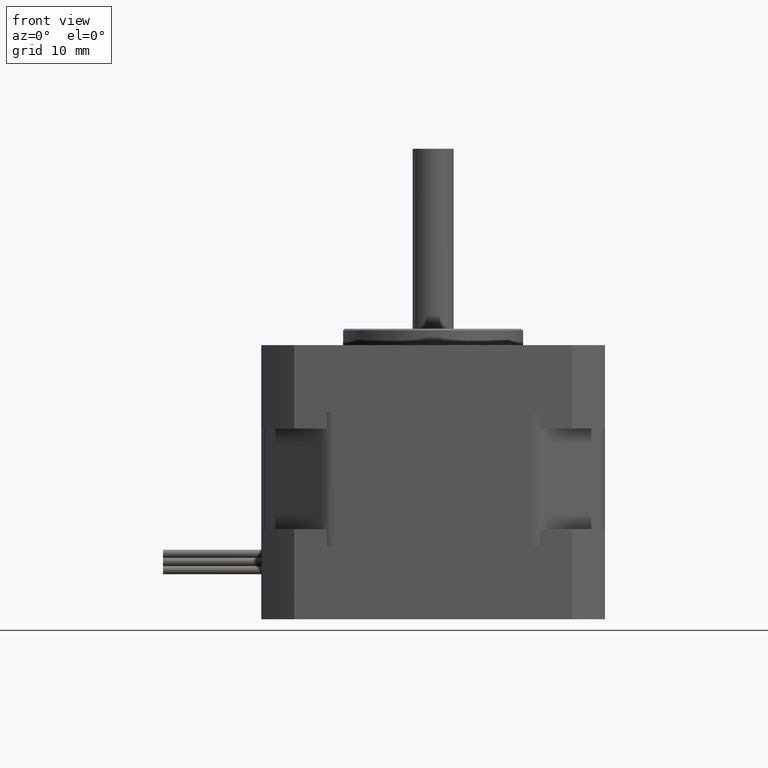
[diagram: clean part render]
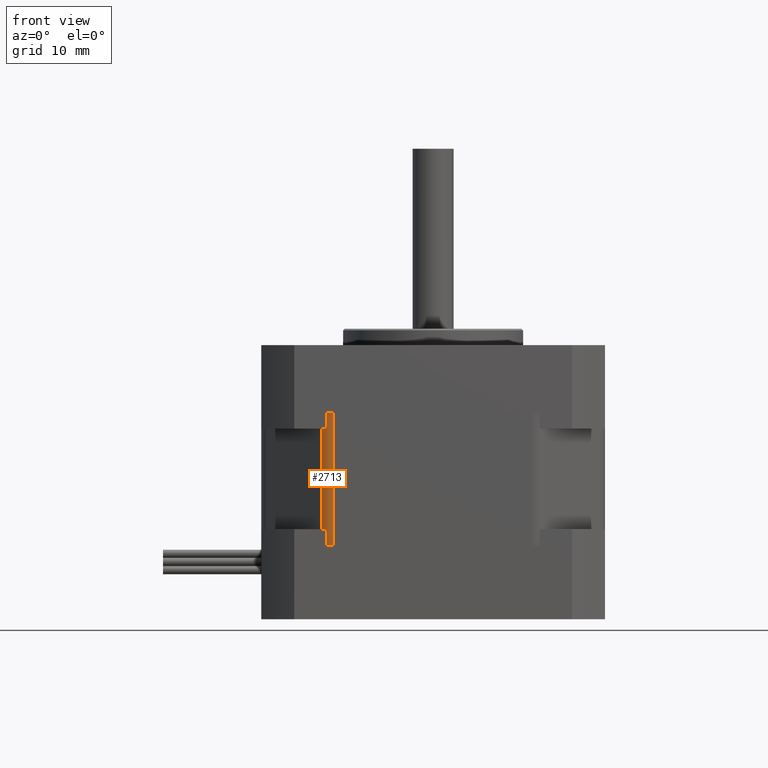
[diagram: same view with one face highlighted and labeled with its STEP entity id]
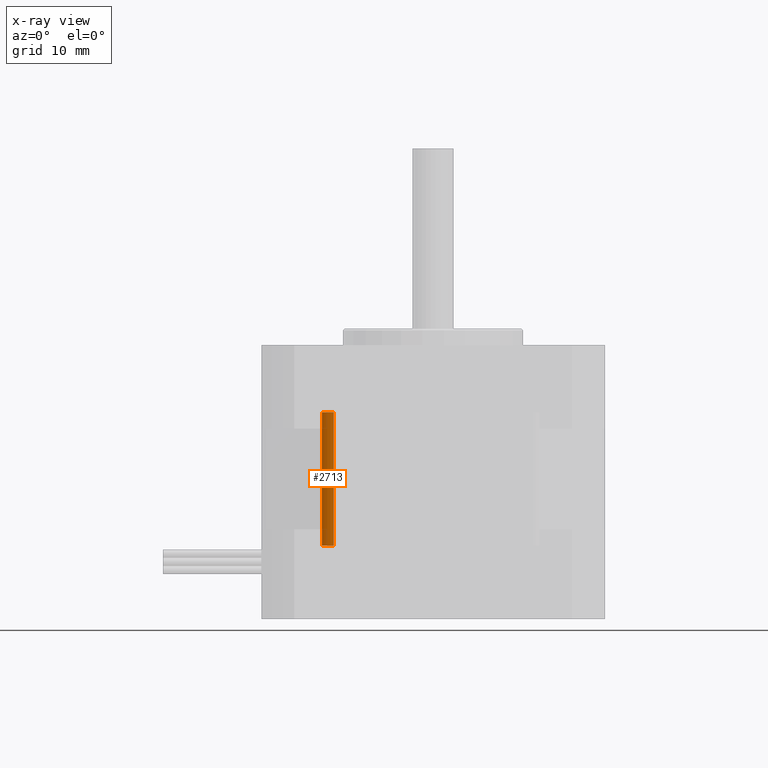
[diagram: x-ray of the same camera — body ghosted, the highlighted face saturated]
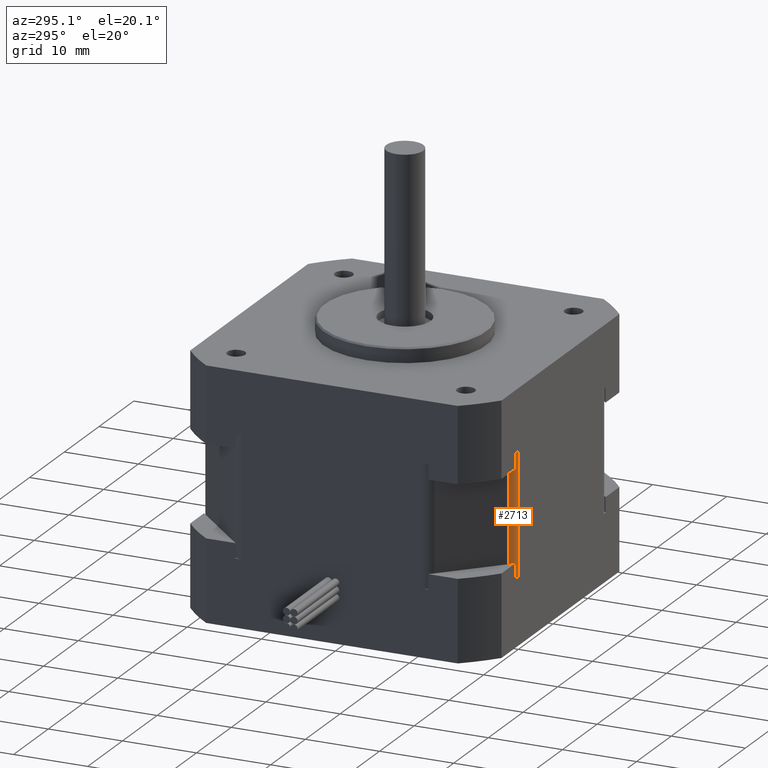
[diagram: same view with one face highlighted and labeled with its STEP entity id]
A machine part, front view. The second image highlights one B-rep face of the part: STEP entity #2713.
The next image is the same camera in x-ray: the body ghosted, the highlighted face saturated — about 0% of this face is hidden behind the body in this view.
A second angle (auxiliary view) of the same face is appended — the face is thin or edge-on in the first view.
In plain terms, the highlighted cylindrical surface (edge-blend (fillet) strip) has radius 2 mm, axis along (0, 0, 1).
Its self-contained STEP definition (entity closure, byte-faithful):
#231=FACE_OUTER_BOUND('',#423,.T.);
#423=EDGE_LOOP('',(#1779,#1780,#1781,#1782));
#689=LINE('',#4274,#847);
#691=LINE('',#4279,#849);
#847=VECTOR('',#3347,10.);
#849=VECTOR('',#3353,10.);
#997=CIRCLE('',#2924,2.);
#1001=CIRCLE('',#2933,2.);
#1177=VERTEX_POINT('',#4249);
#1178=VERTEX_POINT('',#4251);
#1185=VERTEX_POINT('',#4273);
#1186=VERTEX_POINT('',#4277);
#1411=EDGE_CURVE('',#1178,#1177,#997,.T.);
#1422=EDGE_CURVE('',#1185,#1178,#689,.T.);
#1424=EDGE_CURVE('',#1186,#1185,#1001,.T.);
#1425=EDGE_CURVE('',#1177,#1186,#691,.T.);
#1779=ORIENTED_EDGE('',*,*,#1424,.T.);
#1780=ORIENTED_EDGE('',*,*,#1422,.T.);
#1781=ORIENTED_EDGE('',*,*,#1411,.T.);
#1782=ORIENTED_EDGE('',*,*,#1425,.T.);
#2468=CYLINDRICAL_SURFACE('',#2932,2.);
#2713=ADVANCED_FACE('',(#231),#2468,.T.);
#2924=AXIS2_PLACEMENT_3D('',#4252,#3324,#3325);
#2932=AXIS2_PLACEMENT_3D('',#4276,#3349,#3350);
#2933=AXIS2_PLACEMENT_3D('',#4278,#3351,#3352);
#3324=DIRECTION('center_axis',(0.,0.,1.));
#3325=DIRECTION('ref_axis',(-0.382683432365089,-0.923879532511287,0.));
#3347=DIRECTION('',(0.,0.,-1.));
#3349=DIRECTION('center_axis',(0.,0.,1.));
#3350=DIRECTION('ref_axis',(-0.382683432365089,-0.923879532511287,0.));
#3351=DIRECTION('center_axis',(0.,0.,-1.));
#3352=DIRECTION('ref_axis',(-0.382683432365089,-0.923879532511287,0.));
#3353=DIRECTION('',(0.,0.,1.));
#4249=CARTESIAN_POINT('',(-12.1715728752538,-21.,-8.15));
#4251=CARTESIAN_POINT('',(-13.5857864376269,-20.4142135623731,-8.15));
#4252=CARTESIAN_POINT('Origin',(-12.1715728752538,-19.,-8.15));
#4273=CARTESIAN_POINT('',(-13.5857864376269,-20.4142135623731,8.15));
#4274=CARTESIAN_POINT('',(-13.5857864376269,-20.4142135623731,0.));
#4276=CARTESIAN_POINT('Origin',(-12.1715728752538,-19.,0.));
#4277=CARTESIAN_POINT('',(-12.1715728752538,-21.,8.15));
#4278=CARTESIAN_POINT('Origin',(-12.1715728752538,-19.,8.15));
#4279=CARTESIAN_POINT('',(-12.1715728752538,-21.,0.));